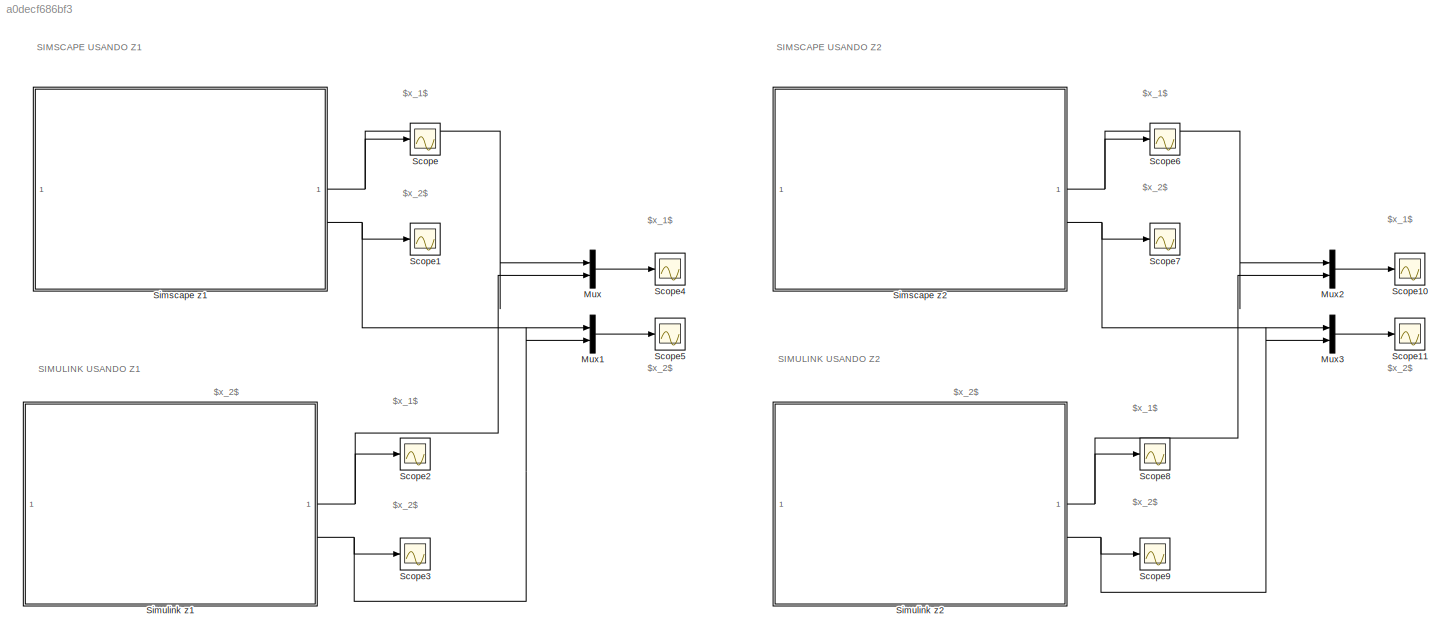
MODEL slx_a0decf686bf3
KIND model
CONFIG AbsTol = auto
CONFIG EnableMultiTasking = off
CONFIG FixedStep = auto
CONFIG InitFcn = m1 = 290;\nb1 = 1000;\nm2 = 59;\nk1 = 16182;\nf = 0;\nk2 = 19000;
CONFIG MaxStep = auto
CONFIG MinStep = auto
CONFIG RelTol = 1e-3
CONFIG SampleTimeConstraint = Unconstrained
CONFIG SolverName = VariableStepAuto
CONFIG StartTime = 0.0
CONFIG StopTime = 10.0
BLOCK [Mux] Mux
  DisplayOption = bar
  Inputs = 2
BLOCK [Mux] Mux1
  DisplayOption = bar
  Inputs = 2
BLOCK [Mux] Mux2
  DisplayOption = bar
  Inputs = 2
BLOCK [Mux] Mux3
  DisplayOption = bar
  Inputs = 2
BLOCK [Scope] Scope
  Floating = off
  NumInputPorts = 1
  ScopeSpecificationString = Simulink.scopes.TimeScopeBlockCfg('CurrentConfiguration', extmgr.ConfigurationSet(extmgr.Configuration('Core','General UI',true),extmgr.Configuration('Core','Source UI',true),extmgr.Configuration('Sources','WiredSimulink',true,'DataLoggingVariableName','ScopeData4'),extmgr.Configuration('Visuals','Time Domain',true,'SerializedDisplays',{struct('MinYLimReal','-0.07025','MaxYLimReal','0.08056','YLab...<+1492ch>
BLOCK [Scope] Scope1
  Floating = off
  NumInputPorts = 1
  ScopeSpecificationString = Simulink.scopes.TimeScopeBlockCfg('CurrentConfiguration', extmgr.ConfigurationSet(extmgr.Configuration('Core','General UI',true),extmgr.Configuration('Core','Source UI',true),extmgr.Configuration('Sources','WiredSimulink',true,'DataLoggingVariableName','ScopeData5'),extmgr.Configuration('Visuals','Time Domain',true,'SerializedDisplays',{struct('MinYLimReal','-0.0062','MaxYLimReal','0.01722','YLabe...<+1454ch>
BLOCK [Scope] Scope10
  Floating = off
  NumInputPorts = 1
  ScopeSpecificationString = Simulink.scopes.TimeScopeBlockCfg('CurrentConfiguration', extmgr.ConfigurationSet(extmgr.Configuration('Core','General UI',true),extmgr.Configuration('Core','Source UI',true),extmgr.Configuration('Sources','WiredSimulink',true,'DataLoggingVariableName','ScopeData1'),extmgr.Configuration('Visuals','Time Domain',true,'SerializedDisplays',{struct('MinYLimReal','-0.0045','MaxYLimReal','0.0056','YLabel...<+1501ch>
BLOCK [Scope] Scope11
  Floating = off
  NumInputPorts = 1
  ScopeSpecificationString = Simulink.scopes.TimeScopeBlockCfg('CurrentConfiguration', extmgr.ConfigurationSet(extmgr.Configuration('Core','General UI',true),extmgr.Configuration('Core','Source UI',true),extmgr.Configuration('Sources','WiredSimulink',true,'DataLoggingVariableName','ScopeData2'),extmgr.Configuration('Visuals','Time Domain',true,'SerializedDisplays',{struct('MinYLimReal','-0.00828','MaxYLimReal','0.01412','YLab...<+1508ch>
BLOCK [Scope] Scope2
  Floating = off
  NumInputPorts = 1
  ScopeSpecificationString = Simulink.scopes.TimeScopeBlockCfg('CurrentConfiguration', extmgr.ConfigurationSet(extmgr.Configuration('Core','General UI',true),extmgr.Configuration('Core','Source UI',true),extmgr.Configuration('Sources','WiredSimulink',true,'DataLoggingVariableName','ScopeData6'),extmgr.Configuration('Visuals','Time Domain',true,'SerializedDisplays',{struct('MinYLimReal','-0.07025','MaxYLimReal','0.08056','YLab...<+1492ch>
BLOCK [Scope] Scope3
  Floating = off
  NumInputPorts = 1
  ScopeSpecificationString = Simulink.scopes.TimeScopeBlockCfg('CurrentConfiguration', extmgr.ConfigurationSet(extmgr.Configuration('Core','General UI',true),extmgr.Configuration('Core','Source UI',true),extmgr.Configuration('Sources','WiredSimulink',true,'DataLoggingVariableName','ScopeData7'),extmgr.Configuration('Visuals','Time Domain',true,'SerializedDisplays',{struct('MinYLimReal','-0.0664','MaxYLimReal','0.07096','YLabe...<+1454ch>
BLOCK [Scope] Scope4
  Floating = off
  NumInputPorts = 1
  ScopeSpecificationString = Simulink.scopes.TimeScopeBlockCfg('CurrentConfiguration', extmgr.ConfigurationSet(extmgr.Configuration('Core','General UI',true),extmgr.Configuration('Core','Source UI',true),extmgr.Configuration('Sources','WiredSimulink',true,'DataLoggingVariableName','ScopeData8'),extmgr.Configuration('Visuals','Time Domain',true,'SerializedDisplays',{struct('MinYLimReal','-0.07025','MaxYLimReal','0.08056','YLab...<+1507ch>
BLOCK [Scope] Scope5
  Floating = off
  NumInputPorts = 1
  ScopeSpecificationString = Simulink.scopes.TimeScopeBlockCfg('CurrentConfiguration', extmgr.ConfigurationSet(extmgr.Configuration('Core','General UI',true),extmgr.Configuration('Core','Source UI',true),extmgr.Configuration('Sources','WiredSimulink',true,'DataLoggingVariableName','ScopeData9'),extmgr.Configuration('Visuals','Time Domain',true,'SerializedDisplays',{struct('MinYLimReal','-0.00854','MaxYLimReal','0.01748','YLab...<+1502ch>
BLOCK [Scope] Scope6
  Floating = off
  NumInputPorts = 1
  ScopeSpecificationString = Simulink.scopes.TimeScopeBlockCfg('CurrentConfiguration', extmgr.ConfigurationSet(extmgr.Configuration('Core','General UI',true),extmgr.Configuration('Core','Source UI',true),extmgr.Configuration('Sources','WiredSimulink',true,'DataLoggingVariableName','ScopeData3'),extmgr.Configuration('Visuals','Time Domain',true,'SerializedDisplays',{struct('MinYLimReal','-0.0045','MaxYLimReal','0.0056','YLabel...<+1486ch>
BLOCK [Scope] Scope7
  Floating = off
  NumInputPorts = 1
  ScopeSpecificationString = Simulink.scopes.TimeScopeBlockCfg('CurrentConfiguration', extmgr.ConfigurationSet(extmgr.Configuration('Core','General UI',true),extmgr.Configuration('Core','Source UI',true),extmgr.Configuration('Sources','WiredSimulink',true,'DataLoggingVariableName','ScopeData4'),extmgr.Configuration('Visuals','Time Domain',true,'SerializedDisplays',{struct('MinYLimReal','-0.0062','MaxYLimReal','0.01722','YLabe...<+1454ch>
BLOCK [Scope] Scope8
  Floating = off
  NumInputPorts = 1
  ScopeSpecificationString = Simulink.scopes.TimeScopeBlockCfg('CurrentConfiguration', extmgr.ConfigurationSet(extmgr.Configuration('Core','General UI',true),extmgr.Configuration('Core','Source UI',true),extmgr.Configuration('Sources','WiredSimulink',true,'DataLoggingVariableName','ScopeData5'),extmgr.Configuration('Visuals','Time Domain',true,'SerializedDisplays',{struct('MinYLimReal','-0.00449','MaxYLimReal','0.0056','YLabe...<+1488ch>
BLOCK [Scope] Scope9
  Floating = off
  NumInputPorts = 1
  ScopeSpecificationString = Simulink.scopes.TimeScopeBlockCfg('CurrentConfiguration', extmgr.ConfigurationSet(extmgr.Configuration('Core','General UI',true),extmgr.Configuration('Core','Source UI',true),extmgr.Configuration('Sources','WiredSimulink',true,'DataLoggingVariableName','ScopeData6'),extmgr.Configuration('Visuals','Time Domain',true,'SerializedDisplays',{struct('MinYLimReal','-0.0664','MaxYLimReal','0.07096','YLabe...<+1454ch>
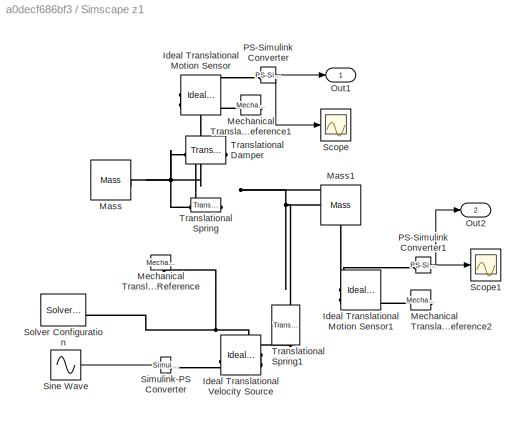
BLOCK [SubSystem] Simscape z1
BLOCK [Reference] Simscape z1/Ideal Translational Motion Sensor  REF=fl_lib/Mechanical/Mechanical Sensors/Ideal Translational
Motion Sensor
  SourceBlock = fl_lib/Mechanical/Mechanical Sensors/Ideal Translational\nMotion Sensor
  SourceType = Ideal Translational\nMotion Sensor
BLOCK [Reference] Simscape z1/Ideal Translational Motion Sensor1  REF=fl_lib/Mechanical/Mechanical Sensors/Ideal Translational
Motion Sensor
  SourceBlock = fl_lib/Mechanical/Mechanical Sensors/Ideal Translational\nMotion Sensor
  SourceType = Ideal Translational\nMotion Sensor
BLOCK [Reference] Simscape z1/Ideal Translational Velocity Source  REF=fl_lib/Mechanical/Mechanical Sources/Ideal Translational
Velocity Source
  SourceBlock = fl_lib/Mechanical/Mechanical Sources/Ideal Translational\nVelocity Source
  SourceType = Ideal Translational\nVelocity Source
BLOCK [Reference] Simscape z1/Mass  REF=fl_lib/Mechanical/Translational
Elements/Mass
  SourceBlock = fl_lib/Mechanical/Translational\nElements/Mass
  SourceType = Mass
BLOCK [Reference] Simscape z1/Mass1  REF=fl_lib/Mechanical/Translational
Elements/Mass
  NameLocation = top
  SourceBlock = fl_lib/Mechanical/Translational\nElements/Mass
  SourceType = Mass
BLOCK [Reference] Simscape z1/Mechanical Translational Reference  REF=fl_lib/Mechanical/Translational
Elements/Mechanical
Translational
Reference
  NameLocation = left
  SourceBlock = fl_lib/Mechanical/Translational\nElements/Mechanical\nTranslational\nReference
  SourceType = Mechanical\nTranslational\nReference
BLOCK [Reference] Simscape z1/Mechanical Translational Reference1  REF=fl_lib/Mechanical/Translational
Elements/Mechanical
Translational
Reference
  NameLocation = top
  SourceBlock = fl_lib/Mechanical/Translational\nElements/Mechanical\nTranslational\nReference
  SourceType = Mechanical\nTranslational\nReference
BLOCK [Reference] Simscape z1/Mechanical Translational Reference2  REF=fl_lib/Mechanical/Translational
Elements/Mechanical
Translational
Reference
  NameLocation = top
  SourceBlock = fl_lib/Mechanical/Translational\nElements/Mechanical\nTranslational\nReference
  SourceType = Mechanical\nTranslational\nReference
BLOCK [Outport] Simscape z1/Out1
BLOCK [Outport] Simscape z1/Out2
  Port = 2
BLOCK [Reference] Simscape z1/PS-Simulink Converter  REF=nesl_utility/PS-Simulink
Converter
  SourceBlock = nesl_utility/PS-Simulink\nConverter
  SourceType = PS-Simulink\nConverter
BLOCK [Reference] Simscape z1/PS-Simulink Converter1  REF=nesl_utility/PS-Simulink
Converter
  SourceBlock = nesl_utility/PS-Simulink\nConverter
  SourceType = PS-Simulink\nConverter
BLOCK [Scope] Simscape z1/Scope
  Floating = off
  NumInputPorts = 1
  ScopeSpecificationString = Simulink.scopes.TimeScopeBlockCfg('CurrentConfiguration', extmgr.ConfigurationSet(extmgr.Configuration('Core','General UI',true),extmgr.Configuration('Core','Source UI',true),extmgr.Configuration('Sources','WiredSimulink',true,'DataLoggingVariableName','ScopeData1'),extmgr.Configuration('Visuals','Time Domain',true,'SerializedDisplays',{struct('MinYLimReal','-0.07025','MaxYLimReal','0.08056','YLab...<+1498ch>
BLOCK [Scope] Simscape z1/Scope1
  Floating = off
  NumInputPorts = 1
  ScopeSpecificationString = Simulink.scopes.TimeScopeBlockCfg('CurrentConfiguration', extmgr.ConfigurationSet(extmgr.Configuration('Core','General UI',true),extmgr.Configuration('Core','Source UI',true),extmgr.Configuration('Sources','WiredSimulink',true),extmgr.Configuration('Visuals','Time Domain',true,'SerializedDisplays',{struct('MinYLimReal','-0.06639','MaxYLimReal','0.07095','YLabelReal','','MinYLimMag','0.00000','MaxY...<+1431ch>
BLOCK [Reference] Simscape z1/Simulink-PS Converter  REF=nesl_utility/Simulink-PS
Converter
  SourceBlock = nesl_utility/Simulink-PS\nConverter
  SourceType = Simulink-PS\nConverter
BLOCK [Sin] Simscape z1/Sine Wave
  Amplitude = 0.05*0.5*pi
  Frequency = 0.5*pi
  Phase = pi/2
  SampleTime = 0
BLOCK [Reference] Simscape z1/Solver Configuration  REF=nesl_utility/Solver
Configuration
  SourceBlock = nesl_utility/Solver\nConfiguration
  SourceType = Solver\nConfiguration
BLOCK [Reference] Simscape z1/Translational Damper  REF=fl_lib/Mechanical/Translational
Elements/Translational Damper
  NameLocation = top
  SourceBlock = fl_lib/Mechanical/Translational\nElements/Translational Damper
  SourceType = Translational Damper
BLOCK [Reference] Simscape z1/Translational Spring  REF=fl_lib/Mechanical/Translational
Elements/Translational Spring
  NameLocation = top
  SourceBlock = fl_lib/Mechanical/Translational\nElements/Translational Spring
  SourceType = Translational Spring
BLOCK [Reference] Simscape z1/Translational Spring1  REF=fl_lib/Mechanical/Translational
Elements/Translational Spring
  NameLocation = left
  SourceBlock = fl_lib/Mechanical/Translational\nElements/Translational Spring
  SourceType = Translational Spring
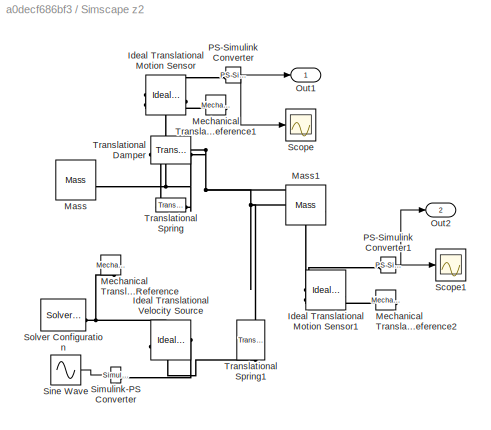
BLOCK [SubSystem] Simscape z2
BLOCK [Reference] Simscape z2/Ideal Translational Motion Sensor  REF=fl_lib/Mechanical/Mechanical Sensors/Ideal Translational
Motion Sensor
  SourceBlock = fl_lib/Mechanical/Mechanical Sensors/Ideal Translational\nMotion Sensor
  SourceType = Ideal Translational\nMotion Sensor
BLOCK [Reference] Simscape z2/Ideal Translational Motion Sensor1  REF=fl_lib/Mechanical/Mechanical Sensors/Ideal Translational
Motion Sensor
  SourceBlock = fl_lib/Mechanical/Mechanical Sensors/Ideal Translational\nMotion Sensor
  SourceType = Ideal Translational\nMotion Sensor
BLOCK [Reference] Simscape z2/Ideal Translational Velocity Source  REF=fl_lib/Mechanical/Mechanical Sources/Ideal Translational
Velocity Source
  SourceBlock = fl_lib/Mechanical/Mechanical Sources/Ideal Translational\nVelocity Source
  SourceType = Ideal Translational\nVelocity Source
BLOCK [Reference] Simscape z2/Mass  REF=fl_lib/Mechanical/Translational
Elements/Mass
  SourceBlock = fl_lib/Mechanical/Translational\nElements/Mass
  SourceType = Mass
BLOCK [Reference] Simscape z2/Mass1  REF=fl_lib/Mechanical/Translational
Elements/Mass
  NameLocation = top
  SourceBlock = fl_lib/Mechanical/Translational\nElements/Mass
  SourceType = Mass
BLOCK [Reference] Simscape z2/Mechanical Translational Reference  REF=fl_lib/Mechanical/Translational
Elements/Mechanical
Translational
Reference
  NameLocation = left
  SourceBlock = fl_lib/Mechanical/Translational\nElements/Mechanical\nTranslational\nReference
  SourceType = Mechanical\nTranslational\nReference
BLOCK [Reference] Simscape z2/Mechanical Translational Reference1  REF=fl_lib/Mechanical/Translational
Elements/Mechanical
Translational
Reference
  NameLocation = top
  SourceBlock = fl_lib/Mechanical/Translational\nElements/Mechanical\nTranslational\nReference
  SourceType = Mechanical\nTranslational\nReference
BLOCK [Reference] Simscape z2/Mechanical Translational Reference2  REF=fl_lib/Mechanical/Translational
Elements/Mechanical
Translational
Reference
  NameLocation = top
  SourceBlock = fl_lib/Mechanical/Translational\nElements/Mechanical\nTranslational\nReference
  SourceType = Mechanical\nTranslational\nReference
BLOCK [Outport] Simscape z2/Out1
BLOCK [Outport] Simscape z2/Out2
  Port = 2
BLOCK [Reference] Simscape z2/PS-Simulink Converter  REF=nesl_utility/PS-Simulink
Converter
  SourceBlock = nesl_utility/PS-Simulink\nConverter
  SourceType = PS-Simulink\nConverter
BLOCK [Reference] Simscape z2/PS-Simulink Converter1  REF=nesl_utility/PS-Simulink
Converter
  SourceBlock = nesl_utility/PS-Simulink\nConverter
  SourceType = PS-Simulink\nConverter
BLOCK [Scope] Simscape z2/Scope
  Floating = off
  NumInputPorts = 1
  ScopeSpecificationString = Simulink.scopes.TimeScopeBlockCfg('CurrentConfiguration', extmgr.ConfigurationSet(extmgr.Configuration('Core','General UI',true),extmgr.Configuration('Core','Source UI',true),extmgr.Configuration('Sources','WiredSimulink',true,'DataLoggingVariableName','ScopeData1'),extmgr.Configuration('Visuals','Time Domain',true,'SerializedDisplays',{struct('MinYLimReal','-0.07025','MaxYLimReal','0.08054','YLab...<+1498ch>
BLOCK [Scope] Simscape z2/Scope1
  Floating = off
  NumInputPorts = 1
  ScopeSpecificationString = Simulink.scopes.TimeScopeBlockCfg('CurrentConfiguration', extmgr.ConfigurationSet(extmgr.Configuration('Core','General UI',true),extmgr.Configuration('Core','Source UI',true),extmgr.Configuration('Sources','WiredSimulink',true),extmgr.Configuration('Visuals','Time Domain',true,'SerializedDisplays',{struct('MinYLimReal','-0.06637','MaxYLimReal','0.07095','YLabelReal','','MinYLimMag','0.00000','MaxY...<+1431ch>
BLOCK [Reference] Simscape z2/Simulink-PS Converter  REF=nesl_utility/Simulink-PS
Converter
  SourceBlock = nesl_utility/Simulink-PS\nConverter
  SourceType = Simulink-PS\nConverter
BLOCK [Sin] Simscape z2/Sine Wave
  Amplitude = 0.05*20*pi
  Frequency = 20*pi
  Phase = pi/2
  SampleTime = 0
BLOCK [Reference] Simscape z2/Solver Configuration  REF=nesl_utility/Solver
Configuration
  SourceBlock = nesl_utility/Solver\nConfiguration
  SourceType = Solver\nConfiguration
BLOCK [Reference] Simscape z2/Translational Damper  REF=fl_lib/Mechanical/Translational
Elements/Translational Damper
  NameLocation = top
  SourceBlock = fl_lib/Mechanical/Translational\nElements/Translational Damper
  SourceType = Translational Damper
BLOCK [Reference] Simscape z2/Translational Spring  REF=fl_lib/Mechanical/Translational
Elements/Translational Spring
  NameLocation = top
  SourceBlock = fl_lib/Mechanical/Translational\nElements/Translational Spring
  SourceType = Translational Spring
BLOCK [Reference] Simscape z2/Translational Spring1  REF=fl_lib/Mechanical/Translational
Elements/Translational Spring
  NameLocation = left
  SourceBlock = fl_lib/Mechanical/Translational\nElements/Translational Spring
  SourceType = Translational Spring
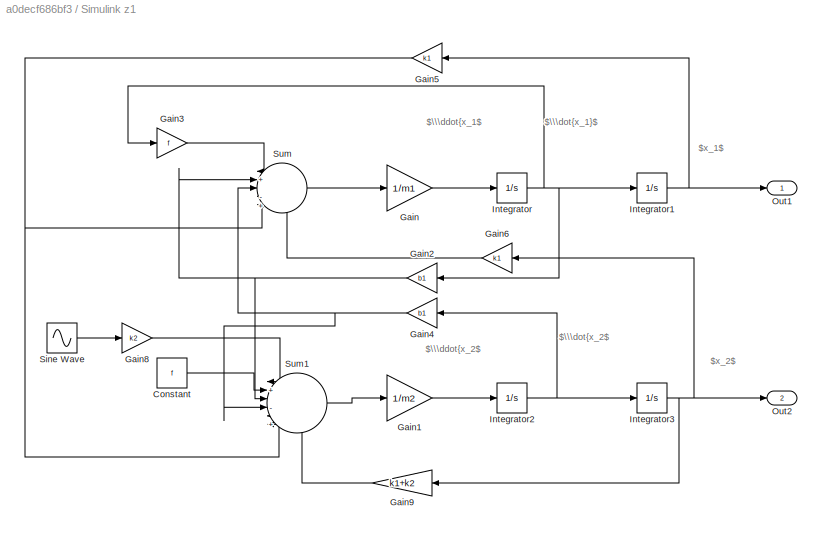
BLOCK [SubSystem] Simulink z1
BLOCK [Constant] Simulink z1/Constant
  Value = f
BLOCK [Gain] Simulink z1/Gain
  Gain = 1/m1
BLOCK [Gain] Simulink z1/Gain1
  Gain = 1/m2
BLOCK [Gain] Simulink z1/Gain2
  Gain = b1
  NameLocation = top
BLOCK [Gain] Simulink z1/Gain3
  Gain = f
BLOCK [Gain] Simulink z1/Gain4
  Gain = b1
  NameLocation = top
BLOCK [Gain] Simulink z1/Gain5
  Gain = k1
  NameLocation = top
BLOCK [Gain] Simulink z1/Gain6
  Gain = k1
  NameLocation = top
BLOCK [Gain] Simulink z1/Gain8
  Gain = k2
BLOCK [Gain] Simulink z1/Gain9
  Gain = k1+k2
  NameLocation = top
BLOCK [Integrator] Simulink z1/Integrator
BLOCK [Integrator] Simulink z1/Integrator1
BLOCK [Integrator] Simulink z1/Integrator2
BLOCK [Integrator] Simulink z1/Integrator3
BLOCK [Outport] Simulink z1/Out1
BLOCK [Outport] Simulink z1/Out2
  Port = 2
BLOCK [Sin] Simulink z1/Sine Wave
  Amplitude = 0.05
  Frequency = 0.5*pi
  SampleTime = 0
BLOCK [Sum] Simulink z1/Sum
  Inputs = |+|-|+|-|+
BLOCK [Sum] Simulink z1/Sum1
  Inputs = |+|-|+|-|+|-
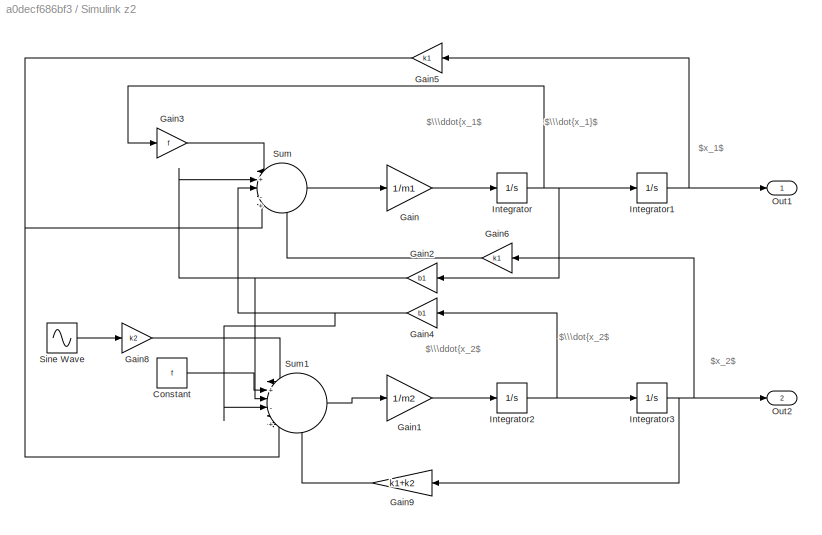
BLOCK [SubSystem] Simulink z2
BLOCK [Constant] Simulink z2/Constant
  Value = f
BLOCK [Gain] Simulink z2/Gain
  Gain = 1/m1
BLOCK [Gain] Simulink z2/Gain1
  Gain = 1/m2
BLOCK [Gain] Simulink z2/Gain2
  Gain = b1
  NameLocation = top
BLOCK [Gain] Simulink z2/Gain3
  Gain = f
BLOCK [Gain] Simulink z2/Gain4
  Gain = b1
  NameLocation = top
BLOCK [Gain] Simulink z2/Gain5
  Gain = k1
  NameLocation = top
BLOCK [Gain] Simulink z2/Gain6
  Gain = k1
  NameLocation = top
BLOCK [Gain] Simulink z2/Gain8
  Gain = k2
BLOCK [Gain] Simulink z2/Gain9
  Gain = k1+k2
  NameLocation = top
BLOCK [Integrator] Simulink z2/Integrator
BLOCK [Integrator] Simulink z2/Integrator1
BLOCK [Integrator] Simulink z2/Integrator2
BLOCK [Integrator] Simulink z2/Integrator3
BLOCK [Outport] Simulink z2/Out1
BLOCK [Outport] Simulink z2/Out2
  Port = 2
BLOCK [Sin] Simulink z2/Sine Wave
  Amplitude = 0.05
  Frequency = 20*pi
  SampleTime = 0
BLOCK [Sum] Simulink z2/Sum
  Inputs = |+|-|+|-|+
BLOCK [Sum] Simulink z2/Sum1
  Inputs = |+|-|+|-|+|-
ANNOTATION (root): SIMSCAPE USANDO Z1
ANNOTATION (root): SIMSCAPE USANDO Z2
ANNOTATION (root): SIMULINK USANDO Z1
ANNOTATION (root): SIMULINK USANDO Z2
ANNOTATION (root): $x_1$
ANNOTATION (root): $x_2$
ANNOTATION Simulink z1: $\\\ddot{x_1$
ANNOTATION Simulink z1: $\\\ddot{x_2$
ANNOTATION Simulink z1: $\\\dot{x_1}$
ANNOTATION Simulink z1: $\\\dot{x_2$
ANNOTATION Simulink z1: $x_1$
ANNOTATION Simulink z1: $x_2$
ANNOTATION Simulink z2: $\\\ddot{x_1$
ANNOTATION Simulink z2: $\\\ddot{x_2$
ANNOTATION Simulink z2: $\\\dot{x_1}$
ANNOTATION Simulink z2: $\\\dot{x_2$
ANNOTATION Simulink z2: $x_1$
ANNOTATION Simulink z2: $x_2$
LINE Mux1:1 -> Scope5:1
LINE Mux2:1 -> Scope10:1
LINE Mux3:1 -> Scope11:1
LINE Mux:1 -> Scope4:1
NET Simscape z1/PS-Simulink Converter1:1 -> Simscape z1/Out2:1, Simscape z1/Scope1:1
NET Simscape z1/PS-Simulink Converter:1 -> Simscape z1/Out1:1, Simscape z1/Scope:1
LINE Simscape z1/Sine Wave:1 -> Simscape z1/Simulink-PS Converter:1
NET Simscape z1:1 -> Mux:1, Scope:1
NET Simscape z1:2 -> Mux1:1, Scope1:1
NET Simscape z2/PS-Simulink Converter1:1 -> Simscape z2/Out2:1, Simscape z2/Scope1:1
NET Simscape z2/PS-Simulink Converter:1 -> Simscape z2/Out1:1, Simscape z2/Scope:1
LINE Simscape z2/Sine Wave:1 -> Simscape z2/Simulink-PS Converter:1
NET Simscape z2:1 -> Mux2:1, Scope6:1
NET Simscape z2:2 -> Mux3:1, Scope7:1
LINE Simulink z1/Constant:1 -> Simulink z1/Sum1:2
LINE Simulink z1/Gain1:1 -> Simulink z1/Integrator2:1
NET Simulink z1/Gain2:1 -> Simulink z1/Sum1:3, Simulink z1/Sum:2
LINE Simulink z1/Gain3:1 -> Simulink z1/Sum:1
NET Simulink z1/Gain4:1 -> Simulink z1/Sum1:4, Simulink z1/Sum:3
NET Simulink z1/Gain5:1 -> Simulink z1/Sum1:5, Simulink z1/Sum:4
LINE Simulink z1/Gain6:1 -> Simulink z1/Sum:5
LINE Simulink z1/Gain8:1 -> Simulink z1/Sum1:1
LINE Simulink z1/Gain9:1 -> Simulink z1/Sum1:6
LINE Simulink z1/Gain:1 -> Simulink z1/Integrator:1
NET Simulink z1/Integrator1:1 -> Simulink z1/Gain5:1, Simulink z1/Out1:1
NET Simulink z1/Integrator2:1 -> Simulink z1/Gain4:1, Simulink z1/Integrator3:1
NET Simulink z1/Integrator3:1 -> Simulink z1/Gain6:1, Simulink z1/Gain9:1, Simulink z1/Out2:1
NET Simulink z1/Integrator:1 -> Simulink z1/Gain2:1, Simulink z1/Gain3:1, Simulink z1/Integrator1:1
LINE Simulink z1/Sine Wave:1 -> Simulink z1/Gain8:1
LINE Simulink z1/Sum1:1 -> Simulink z1/Gain1:1
LINE Simulink z1/Sum:1 -> Simulink z1/Gain:1
NET Simulink z1:1 -> Mux:2, Scope2:1
NET Simulink z1:2 -> Mux1:2, Scope3:1
LINE Simulink z2/Constant:1 -> Simulink z2/Sum1:2
LINE Simulink z2/Gain1:1 -> Simulink z2/Integrator2:1
NET Simulink z2/Gain2:1 -> Simulink z2/Sum1:3, Simulink z2/Sum:2
LINE Simulink z2/Gain3:1 -> Simulink z2/Sum:1
NET Simulink z2/Gain4:1 -> Simulink z2/Sum1:4, Simulink z2/Sum:3
NET Simulink z2/Gain5:1 -> Simulink z2/Sum1:5, Simulink z2/Sum:4
LINE Simulink z2/Gain6:1 -> Simulink z2/Sum:5
LINE Simulink z2/Gain8:1 -> Simulink z2/Sum1:1
LINE Simulink z2/Gain9:1 -> Simulink z2/Sum1:6
LINE Simulink z2/Gain:1 -> Simulink z2/Integrator:1
NET Simulink z2/Integrator1:1 -> Simulink z2/Gain5:1, Simulink z2/Out1:1
NET Simulink z2/Integrator2:1 -> Simulink z2/Gain4:1, Simulink z2/Integrator3:1
NET Simulink z2/Integrator3:1 -> Simulink z2/Gain6:1, Simulink z2/Gain9:1, Simulink z2/Out2:1
NET Simulink z2/Integrator:1 -> Simulink z2/Gain2:1, Simulink z2/Gain3:1, Simulink z2/Integrator1:1
LINE Simulink z2/Sine Wave:1 -> Simulink z2/Gain8:1
LINE Simulink z2/Sum1:1 -> Simulink z2/Gain1:1
LINE Simulink z2/Sum:1 -> Simulink z2/Gain:1
NET Simulink z2:1 -> Mux2:2, Scope8:1
NET Simulink z2:2 -> Mux3:2, Scope9:1
PNET net1: Simscape z1/Ideal Translational Motion Sensor1:LConn1 -- Simscape z1/Mass1:LConn1 -- Simscape z1/Translational Damper:LConn1 -- Simscape z1/Translational Spring1:LConn1 -- Simscape z1/Translational Spring:LConn1
PLINE Simscape z1/Ideal Translational Motion Sensor1:RConn1 -- Simscape z1/Mechanical Translational Reference2:LConn1
PLINE Simscape z1/Ideal Translational Motion Sensor1:RConn2 -- Simscape z1/PS-Simulink Converter1:LConn1
PNET net2: Simscape z1/Ideal Translational Motion Sensor:LConn1 -- Simscape z1/Mass:LConn1 -- Simscape z1/Translational Damper:RConn1 -- Simscape z1/Translational Spring:RConn1
PLINE Simscape z1/Ideal Translational Motion Sensor:RConn1 -- Simscape z1/Mechanical Translational Reference1:LConn1
PLINE Simscape z1/Ideal Translational Motion Sensor:RConn2 -- Simscape z1/PS-Simulink Converter:LConn1
PLINE Simscape z1/Ideal Translational Velocity Source:LConn1 -- Simscape z1/Translational Spring1:RConn1
PLINE Simscape z1/Ideal Translational Velocity Source:RConn1 -- Simscape z1/Simulink-PS Converter:RConn1
PNET net3: Simscape z1/Ideal Translational Velocity Source:RConn2 -- Simscape z1/Mechanical Translational Reference:LConn1 -- Simscape z1/Solver Configuration:RConn1
PNET net4: Simscape z2/Ideal Translational Motion Sensor1:LConn1 -- Simscape z2/Mass1:LConn1 -- Simscape z2/Translational Damper:LConn1 -- Simscape z2/Translational Spring1:LConn1 -- Simscape z2/Translational Spring:LConn1
PLINE Simscape z2/Ideal Translational Motion Sensor1:RConn1 -- Simscape z2/Mechanical Translational Reference2:LConn1
PLINE Simscape z2/Ideal Translational Motion Sensor1:RConn2 -- Simscape z2/PS-Simulink Converter1:LConn1
PNET net5: Simscape z2/Ideal Translational Motion Sensor:LConn1 -- Simscape z2/Mass:LConn1 -- Simscape z2/Translational Damper:RConn1 -- Simscape z2/Translational Spring:RConn1
PLINE Simscape z2/Ideal Translational Motion Sensor:RConn1 -- Simscape z2/Mechanical Translational Reference1:LConn1
PLINE Simscape z2/Ideal Translational Motion Sensor:RConn2 -- Simscape z2/PS-Simulink Converter:LConn1
PLINE Simscape z2/Ideal Translational Velocity Source:LConn1 -- Simscape z2/Translational Spring1:RConn1
PLINE Simscape z2/Ideal Translational Velocity Source:RConn1 -- Simscape z2/Simulink-PS Converter:RConn1
PNET net6: Simscape z2/Ideal Translational Velocity Source:RConn2 -- Simscape z2/Mechanical Translational Reference:LConn1 -- Simscape z2/Solver Configuration:RConn1
note: NET lines group one-source signal fan-out (src -> all destinations, sorted); 1:1 wires keep LINE; PNET lines group multi-terminal physical nets as a canonical sorted terminal list (undirected conserving connections); 2-terminal nets keep the pairwise PLINE form
